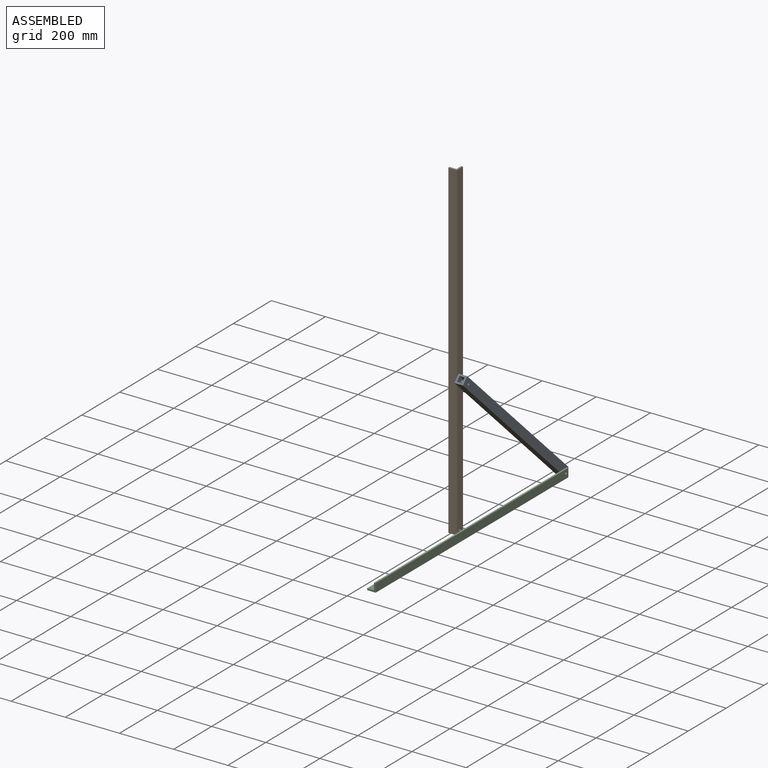
[diagram: assembled view]
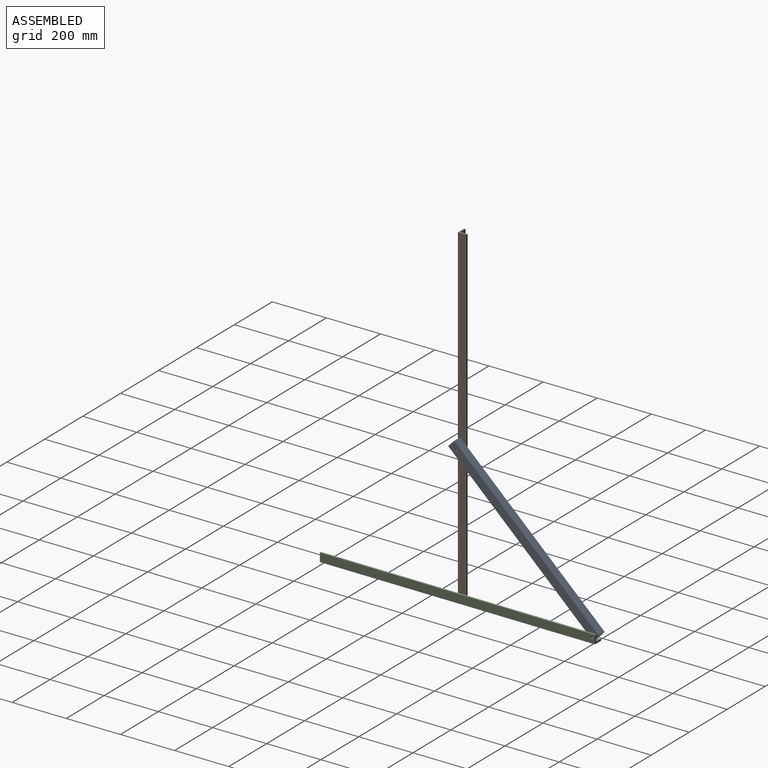
[diagram: assembled view, second angle]
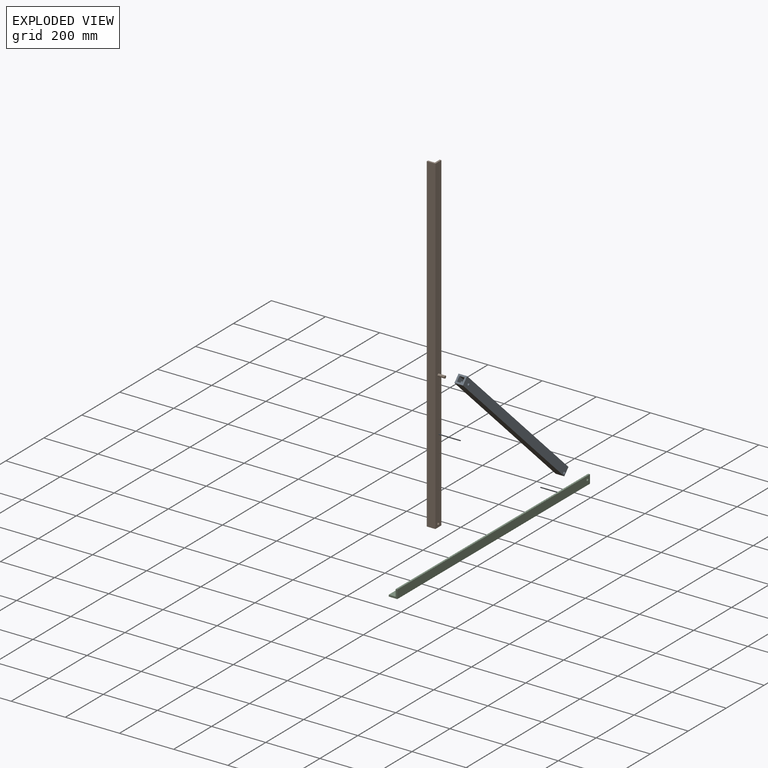
[diagram: exploded view]
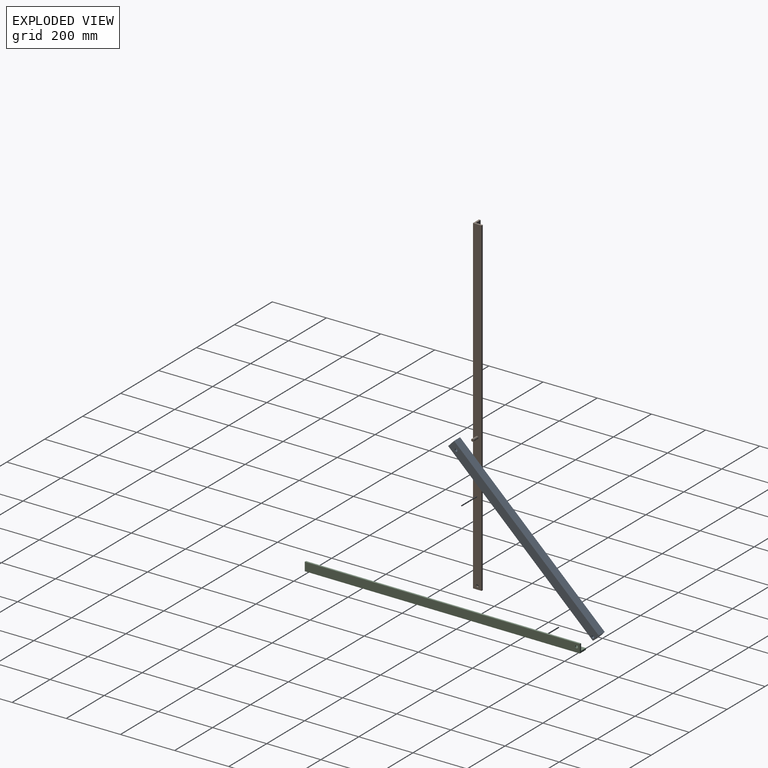
[diagram: exploded view, second angle]
ASSEMBLY  parts=3 mates=4
PART A: 14 faces, bbox 31.8x31.8x736.6 mm
  f0: plane 723.65x19.05mm, normal (-1,0,0), area 13785.5mm2, adj f2,f8,f10,f13
  f1: plane 736.6x19.05mm, normal (1,0,0), area 14032.2mm2, adj f2,f8,f9,f10
  f2: plane 736.6x19.05mm, normal (0,-1,0), area 13901.6mm2, adj f0,f1,f3,f9,f10,f12,f13
  f3: plane 19.05x5.01mm, normal (-1,0,0), area 95.4mm2, adj f2,f8,f9,f13
  f4: plane 736.6x31.75mm, normal (0,1,0), area 23244.5mm2, adj f5,f7,f9,f10,f12,f13
  f5: plane 736.6x31.75mm, normal (-1,0,0), area 23387mm2, adj f4,f6,f9,f10
  f6: plane 736.6x31.75mm, normal (0,-1,0), area 23244.5mm2, adj f5,f7,f9,f10,f11,f13
  f7: plane 736.6x31.75mm, normal (1,0,0), area 23387.1mm2, adj f4,f6,f9,f10
  f8: plane 736.6x19.05mm, normal (0,1,0), area 13901.6mm2, adj f0,f1,f3,f9,f10,f11,f13
  f9: plane 31.75x31.75mm, normal (0,0,1), area 645.2mm2, adj f1,f2,f3,f4,f5,f6,f7,f8
  f10: plane 31.75x31.75mm, normal (0,0,-1), area 645.2mm2, adj f0,f1,f2,f4,f5,f6,f7,f8
  f11: cylinder r=4.76mm len=9.53mm, axis (0,-1,0), area 190mm2, adj f6,f8
  f12: cylinder r=4.76mm len=9.53mm, axis (0,-1,0), area 190mm2, adj f2,f4
  f13: cylinder r=4.76mm len=31.75mm, axis (0,-1,0), area 558.9mm2, adj f0,f2,f3,f4,f6,f8
PART B: 11 faces, bbox 57.2x31.8x1219.2 mm
  f0: plane 1219.2x25.4mm, normal (0,1,0), area 30967.7mm2, adj f1,f5,f6,f7
  f1: plane 1219.2x6.35mm, normal (-1,0,0), area 7741.9mm2, adj f0,f2,f6,f7
  f2: plane 1219.2x31.75mm, normal (0,-1,0), area 38709.6mm2, adj f1,f3,f6,f7
  f3: plane 1219.2x31.75mm, normal (1,0,0), area 38567.1mm2, adj f2,f4,f6,f7,f8,f9
  f4: plane 1219.2x6.35mm, normal (0,1,0), area 7741.9mm2, adj f3,f5,f6,f7
  f5: plane 1219.2x25.4mm, normal (-1,0,0), area 30896.4mm2, adj f0,f4,f6,f7,f8
  f6: plane 31.75x31.75mm, normal (0,0,1), area 362.9mm2, adj f0,f1,f2,f3,f4,f5
  f7: plane 31.75x31.75mm, normal (0,0,-1), area 362.9mm2, adj f0,f1,f2,f3,f4,f5
  f8: cylinder r=4.76mm len=9.53mm, axis (1,0,0), area 190mm2, adj f3,f5
  f9: cylinder r=4.76mm len=25.4mm, axis (-1,0,0), area 760.1mm2, adj f3,f10
  f10: plane 9.53x9.53mm, normal (1,0,0), area 71.3mm2, adj f9
PART C: 9 faces, bbox 1016x31.8x31.8 mm
  f0: plane 1016x6.35mm, normal (0,0,1), area 6451.6mm2, adj f1,f5,f6,f7
  f1: plane 1016x31.75mm, normal (0,-1,0), area 32186.7mm2, adj f0,f2,f6,f7,f8
  f2: plane 1016x31.75mm, normal (0,0,-1), area 32258mm2, adj f1,f3,f6,f7
  f3: plane 1016x6.35mm, normal (0,1,0), area 6451.6mm2, adj f2,f4,f6,f7
  f4: plane 1016x25.4mm, normal (0,0,1), area 25806.4mm2, adj f3,f5,f6,f7
  f5: plane 1016x25.4mm, normal (0,1,0), area 25735.1mm2, adj f0,f4,f6,f7,f8
  f6: plane 31.75x31.75mm, normal (1,0,0), area 362.9mm2, adj f0,f1,f2,f3,f4,f5
  f7: plane 31.75x31.75mm, normal (-1,0,0), area 362.9mm2, adj f0,f1,f2,f3,f4,f5
  f8: cylinder r=4.76mm len=9.53mm, axis (0,-1,0), area 190mm2, adj f1,f5
PLACE A rot(axis=(-0.68,0.68,0.29),147.6deg) t=(-114.7,-88.39,546.18)mm
PLACE B t=(-178.2,-96.77,9.18)mm fixed
PLACE C rot(axis=(0,0,1),90deg) t=(-108.35,-579.62,12.66)mm
MATE planar B.f3 <-> A.f4  axis (1,0,0) through (-146.45,-80.89,620.07)mm
MATE planar C.f5 <-> A.f13  axis (-1,0,0) through (-114.7,-72.94,30.24)mm
MATE cylindrical A.f11 <-> B.f9  axis (-1,0,0) through (-146.45,-80.89,517.18)mm
MATE cylindrical A.f13 <-> C.f8  axis (1,0,0) through (-114.7,423.73,28.79)mm
